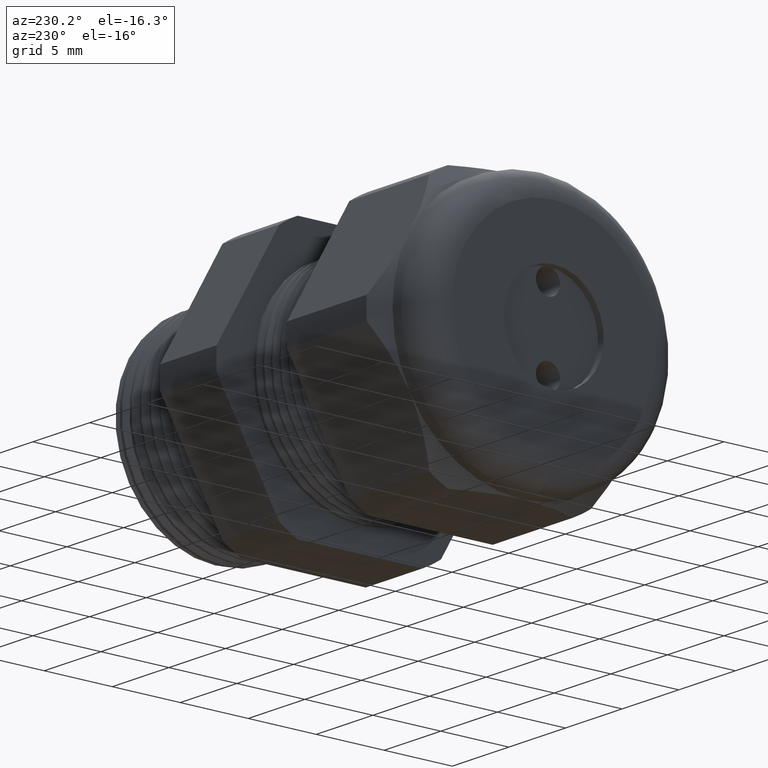
[diagram: clean part render]
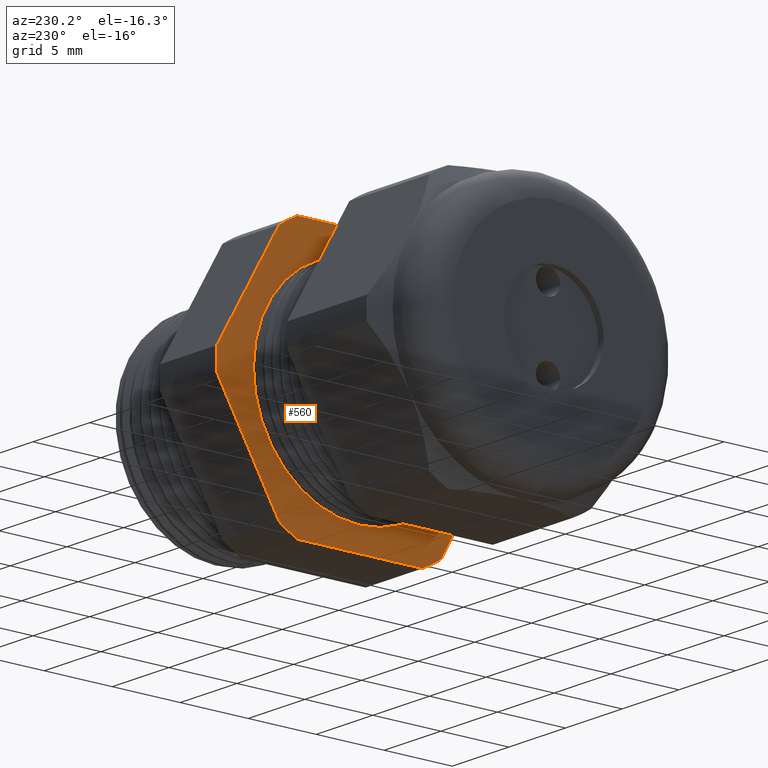
[diagram: same view with one face highlighted and labeled with its STEP entity id]
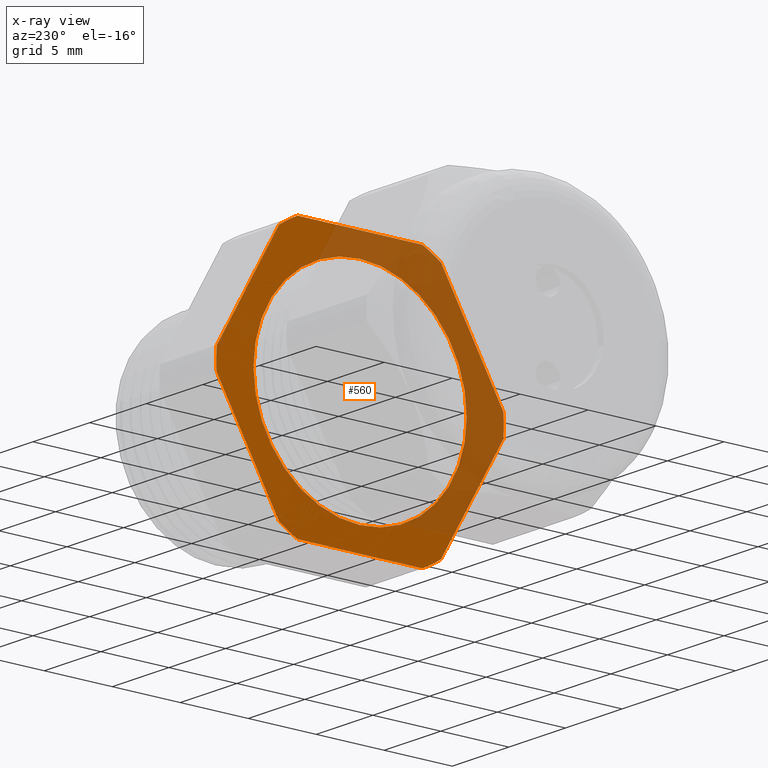
[diagram: x-ray of the same camera — body ghosted, the highlighted face saturated]
A machine part, auxiliary view. The second image highlights one B-rep face of the part: STEP entity #560.
The next image is the same camera in x-ray: the body ghosted, the highlighted face saturated — about 43% of this face is hidden behind the body in this view.
In plain terms, the highlighted planar face has unit normal (-1, 0, 0).
Its self-contained STEP definition (entity closure, byte-faithful):
#137 = EDGE_CURVE ( 'NONE', #138, #139, #1621, .T. ) ;
#138 = VERTEX_POINT ( 'NONE', #1681 ) ;
#139 = VERTEX_POINT ( 'NONE', #1680 ) ;
#426 = EDGE_CURVE ( 'NONE', #441, #503, #2204, .T. ) ;
#432 = VERTEX_POINT ( 'NONE', #2189 ) ;
#434 = EDGE_CURVE ( 'NONE', #450, #432, #2187, .T. ) ;
#441 = VERTEX_POINT ( 'NONE', #2237 ) ;
#446 = VERTEX_POINT ( 'NONE', #2226 ) ;
#450 = VERTEX_POINT ( 'NONE', #2221 ) ;
#452 = EDGE_CURVE ( 'NONE', #446, #450, #2220, .T. ) ;
#466 = VERTEX_POINT ( 'NONE', #2257 ) ;
#468 = EDGE_CURVE ( 'NONE', #484, #493, #2256, .T. ) ;
#474 = VERTEX_POINT ( 'NONE', #2303 ) ;
#476 = EDGE_CURVE ( 'NONE', #493, #474, #2302, .T. ) ;
#484 = VERTEX_POINT ( 'NONE', #2288 ) ;
#486 = EDGE_CURVE ( 'NONE', #503, #484, #2287, .T. ) ;
#493 = VERTEX_POINT ( 'NONE', #2334 ) ;
#496 = EDGE_CURVE ( 'NONE', #432, #441, #2333, .T. ) ;
#503 = VERTEX_POINT ( 'NONE', #2319 ) ;
#513 = VERTEX_POINT ( 'NONE', #2314 ) ;
#515 = EDGE_CURVE ( 'NONE', #529, #513, #2313, .T. ) ;
#522 = EDGE_CURVE ( 'NONE', #537, #466, #2371, .T. ) ;
#529 = VERTEX_POINT ( 'NONE', #2353 ) ;
#531 = EDGE_CURVE ( 'NONE', #466, #529, #2352, .T. ) ;
#537 = VERTEX_POINT ( 'NONE', #2403 ) ;
#539 = EDGE_CURVE ( 'NONE', #474, #537, #2401, .T. ) ;
#546 = ORIENTED_EDGE ( 'NONE', *, *, #452, .T. ) ;
#547 = ORIENTED_EDGE ( 'NONE', *, *, #434, .T. ) ;
#548 = ORIENTED_EDGE ( 'NONE', *, *, #496, .T. ) ;
#549 = ORIENTED_EDGE ( 'NONE', *, *, #426, .T. ) ;
#550 = ORIENTED_EDGE ( 'NONE', *, *, #486, .T. ) ;
#551 = ORIENTED_EDGE ( 'NONE', *, *, #468, .T. ) ;
#552 = ORIENTED_EDGE ( 'NONE', *, *, #476, .T. ) ;
#553 = ORIENTED_EDGE ( 'NONE', *, *, #539, .T. ) ;
#554 = ORIENTED_EDGE ( 'NONE', *, *, #522, .T. ) ;
#555 = ORIENTED_EDGE ( 'NONE', *, *, #531, .T. ) ;
#556 = EDGE_CURVE ( 'NONE', #139, #138, #2391, .T. ) ;
#560 = ADVANCED_FACE ( 'NONE', ( #2381, #2380 ), #2379, .T. ) ;
#561 = EDGE_LOOP ( 'NONE', ( #562, #563 ) ) ;
#562 = ORIENTED_EDGE ( 'NONE', *, *, #556, .T. ) ;
#563 = ORIENTED_EDGE ( 'NONE', *, *, #137, .T. ) ;
#564 = EDGE_LOOP ( 'NONE', ( #565, #566, #546, #547, #548, #549, #550, #551, #552, #553, #554, #555 ) ) ;
#565 = ORIENTED_EDGE ( 'NONE', *, *, #515, .T. ) ;
#566 = ORIENTED_EDGE ( 'NONE', *, *, #580, .T. ) ;
#580 = EDGE_CURVE ( 'NONE', #513, #446, #2434, .T. ) ;
#1620 = AXIS2_PLACEMENT_3D ( 'NONE', #1626, #1683, #1682 ) ;
#1621 = CIRCLE ( 'NONE', #1620, 0.3086102227604024500 ) ;
#1626 = CARTESIAN_POINT ( 'NONE',  ( -0.5068503937007873300, 0.0000000000000000000, 0.0000000000000000000 ) ) ;
#1680 = CARTESIAN_POINT ( 'NONE',  ( -0.5068503937007873300, 0.0000000000000000000, 0.3086102227604024500 ) ) ;
#1681 = CARTESIAN_POINT ( 'NONE',  ( -0.5068503937007873300, 3.780744073576440700E-017, -0.3086102227604024500 ) ) ;
#1682 = DIRECTION ( 'NONE',  ( 0.0000000000000000000, 0.0000000000000000000, -1.000000000000000000 ) ) ;
#1683 = DIRECTION ( 'NONE',  ( 1.000000000000000000, 0.0000000000000000000, 0.0000000000000000000 ) ) ;
#2183 = DIRECTION ( 'NONE',  ( 0.0000000000000000000, 0.0000000000000000000, 1.000000000000000000 ) ) ;
#2184 = DIRECTION ( 'NONE',  ( -1.000000000000000000, 0.0000000000000000000, 0.0000000000000000000 ) ) ;
#2185 = CARTESIAN_POINT ( 'NONE',  ( -0.5068503937007874400, 0.0000000000000000000, 0.0000000000000000000 ) ) ;
#2186 = AXIS2_PLACEMENT_3D ( 'NONE', #2185, #2184, #2183 ) ;
#2187 = CIRCLE ( 'NONE', #2186, 0.4162500000000000100 ) ;
#2189 = CARTESIAN_POINT ( 'NONE',  ( -0.5068503937007874400, 0.1806628420566884800, -0.3750000000000001100 ) ) ;
#2200 = DIRECTION ( 'NONE',  ( 0.0000000000000000000, 0.0000000000000000000, 1.000000000000000000 ) ) ;
#2201 = DIRECTION ( 'NONE',  ( -1.000000000000000000, 0.0000000000000000000, 0.0000000000000000000 ) ) ;
#2202 = CARTESIAN_POINT ( 'NONE',  ( -0.5068503937007874400, 0.0000000000000000000, 0.0000000000000000000 ) ) ;
#2203 = AXIS2_PLACEMENT_3D ( 'NONE', #2202, #2201, #2200 ) ;
#2204 = CIRCLE ( 'NONE', #2203, 0.4162500000000000100 ) ;
#2217 = DIRECTION ( 'NONE',  ( 0.0000000000000000000, -0.5000000000000001100, -0.8660254037844386000 ) ) ;
#2218 = VECTOR ( 'NONE', #2217, 39.37007874015748900 ) ;
#2219 = CARTESIAN_POINT ( 'NONE',  ( -0.5068503937007874400, 0.5122595264191646100, 0.1372595264191645000 ) ) ;
#2220 = LINE ( 'NONE', #2219, #2218 ) ;
#2221 = CARTESIAN_POINT ( 'NONE',  ( -0.5068503937007874400, 0.2344281053908202900, -0.3439586107409878800 ) ) ;
#2226 = CARTESIAN_POINT ( 'NONE',  ( -0.5068503937007874400, 0.4150909474475088000, -0.03104138925901223100 ) ) ;
#2237 = CARTESIAN_POINT ( 'NONE',  ( -0.5068503937007874400, -0.1806628420566883900, -0.3750000000000001100 ) ) ;
#2252 = DIRECTION ( 'NONE',  ( 0.0000000000000000000, 0.0000000000000000000, 1.000000000000000000 ) ) ;
#2253 = DIRECTION ( 'NONE',  ( -1.000000000000000000, 0.0000000000000000000, 0.0000000000000000000 ) ) ;
#2254 = CARTESIAN_POINT ( 'NONE',  ( -0.5068503937007874400, 0.0000000000000000000, 0.0000000000000000000 ) ) ;
#2255 = AXIS2_PLACEMENT_3D ( 'NONE', #2254, #2253, #2252 ) ;
#2256 = CIRCLE ( 'NONE', #2255, 0.4162500000000000100 ) ;
#2257 = CARTESIAN_POINT ( 'NONE',  ( -0.5068503937007874400, 0.1806628420566887000, 0.3749999999999999400 ) ) ;
#2284 = DIRECTION ( 'NONE',  ( 0.0000000000000000000, -0.5000000000000002200, 0.8660254037844384900 ) ) ;
#2285 = VECTOR ( 'NONE', #2284, 39.37007874015748900 ) ;
#2286 = CARTESIAN_POINT ( 'NONE',  ( -0.5068503937007874400, -0.1372595264191642800, -0.5122595264191648300 ) ) ;
#2287 = LINE ( 'NONE', #2286, #2285 ) ;
#2288 = CARTESIAN_POINT ( 'NONE',  ( -0.5068503937007874400, -0.4150909474475088000, -0.03104138925901237000 ) ) ;
#2299 = DIRECTION ( 'NONE',  ( 0.0000000000000000000, 0.4999999999999998300, 0.8660254037844386000 ) ) ;
#2300 = VECTOR ( 'NONE', #2299, 39.37007874015748900 ) ;
#2301 = CARTESIAN_POINT ( 'NONE',  ( -0.5068503937007874400, -0.1372595264191648300, 0.5122595264191645000 ) ) ;
#2302 = LINE ( 'NONE', #2301, #2300 ) ;
#2303 = CARTESIAN_POINT ( 'NONE',  ( -0.5068503937007874400, -0.2344281053908205100, 0.3439586107409878200 ) ) ;
#2310 = DIRECTION ( 'NONE',  ( 0.0000000000000000000, 0.4999999999999998300, -0.8660254037844386000 ) ) ;
#2311 = VECTOR ( 'NONE', #2310, 39.37007874015748900 ) ;
#2312 = CARTESIAN_POINT ( 'NONE',  ( -0.5068503937007874400, 0.5122595264191646100, -0.1372595264191644500 ) ) ;
#2313 = LINE ( 'NONE', #2312, #2311 ) ;
#2314 = CARTESIAN_POINT ( 'NONE',  ( -0.5068503937007874400, 0.4150909474475088000, 0.03104138925901233200 ) ) ;
#2319 = CARTESIAN_POINT ( 'NONE',  ( -0.5068503937007874400, -0.2344281053908202100, -0.3439586107409880500 ) ) ;
#2330 = DIRECTION ( 'NONE',  ( 0.0000000000000000000, -1.000000000000000000, 0.0000000000000000000 ) ) ;
#2331 = VECTOR ( 'NONE', #2330, 39.37007874015748100 ) ;
#2332 = CARTESIAN_POINT ( 'NONE',  ( -0.5068503937007874400, 0.7500000000000001100, -0.3750000000000001100 ) ) ;
#2333 = LINE ( 'NONE', #2332, #2331 ) ;
#2334 = CARTESIAN_POINT ( 'NONE',  ( -0.5068503937007874400, -0.4150909474475088000, 0.03104138925901241800 ) ) ;
#2348 = DIRECTION ( 'NONE',  ( 0.0000000000000000000, 0.0000000000000000000, 1.000000000000000000 ) ) ;
#2349 = DIRECTION ( 'NONE',  ( -1.000000000000000000, 0.0000000000000000000, 0.0000000000000000000 ) ) ;
#2350 = CARTESIAN_POINT ( 'NONE',  ( -0.5068503937007874400, 0.0000000000000000000, 0.0000000000000000000 ) ) ;
#2351 = AXIS2_PLACEMENT_3D ( 'NONE', #2350, #2349, #2348 ) ;
#2352 = CIRCLE ( 'NONE', #2351, 0.4162499999999999500 ) ;
#2353 = CARTESIAN_POINT ( 'NONE',  ( -0.5068503937007874400, 0.2344281053908206000, 0.3439586107409877100 ) ) ;
#2364 = DIRECTION ( 'NONE',  ( 0.0000000000000000000, 1.000000000000000000, 0.0000000000000000000 ) ) ;
#2365 = VECTOR ( 'NONE', #2364, 39.37007874015748100 ) ;
#2366 = CARTESIAN_POINT ( 'NONE',  ( -0.5068503937007874400, 0.7500000000000001100, 0.3749999999999999400 ) ) ;
#2371 = LINE ( 'NONE', #2366, #2365 ) ;
#2372 = CARTESIAN_POINT ( 'NONE',  ( -0.5068503937007874400, 0.0000000000000000000, 0.0000000000000000000 ) ) ;
#2375 = DIRECTION ( 'NONE',  ( 0.0000000000000000000, 0.0000000000000000000, 1.000000000000000000 ) ) ;
#2376 = DIRECTION ( 'NONE',  ( -1.000000000000000000, 0.0000000000000000000, 0.0000000000000000000 ) ) ;
#2377 = CARTESIAN_POINT ( 'NONE',  ( -0.5068503937007874400, 0.7500000000000001100, 0.0000000000000000000 ) ) ;
#2378 = AXIS2_PLACEMENT_3D ( 'NONE', #2377, #2376, #2375 ) ;
#2379 = PLANE ( 'NONE',  #2378 ) ;
#2380 = FACE_OUTER_BOUND ( 'NONE', #564, .T. ) ;
#2381 = FACE_BOUND ( 'NONE', #561, .T. ) ;
#2387 = DIRECTION ( 'NONE',  ( 0.0000000000000000000, 0.0000000000000000000, -1.000000000000000000 ) ) ;
#2388 = DIRECTION ( 'NONE',  ( 1.000000000000000000, 0.0000000000000000000, 0.0000000000000000000 ) ) ;
#2389 = CARTESIAN_POINT ( 'NONE',  ( -0.5068503937007873300, 0.0000000000000000000, 0.0000000000000000000 ) ) ;
#2390 = AXIS2_PLACEMENT_3D ( 'NONE', #2389, #2388, #2387 ) ;
#2391 = CIRCLE ( 'NONE', #2390, 0.3086102227604024500 ) ;
#2397 = DIRECTION ( 'NONE',  ( 0.0000000000000000000, 0.0000000000000000000, 1.000000000000000000 ) ) ;
#2398 = DIRECTION ( 'NONE',  ( -1.000000000000000000, 0.0000000000000000000, 0.0000000000000000000 ) ) ;
#2399 = CARTESIAN_POINT ( 'NONE',  ( -0.5068503937007874400, 0.0000000000000000000, 0.0000000000000000000 ) ) ;
#2400 = AXIS2_PLACEMENT_3D ( 'NONE', #2399, #2398, #2397 ) ;
#2401 = CIRCLE ( 'NONE', #2400, 0.4162500000000000100 ) ;
#2403 = CARTESIAN_POINT ( 'NONE',  ( -0.5068503937007874400, -0.1806628420566886700, 0.3749999999999999400 ) ) ;
#2431 = DIRECTION ( 'NONE',  ( 0.0000000000000000000, 0.0000000000000000000, 1.000000000000000000 ) ) ;
#2432 = DIRECTION ( 'NONE',  ( -1.000000000000000000, 0.0000000000000000000, 0.0000000000000000000 ) ) ;
#2433 = AXIS2_PLACEMENT_3D ( 'NONE', #2372, #2432, #2431 ) ;
#2434 = CIRCLE ( 'NONE', #2433, 0.4162500000000000100 ) ;